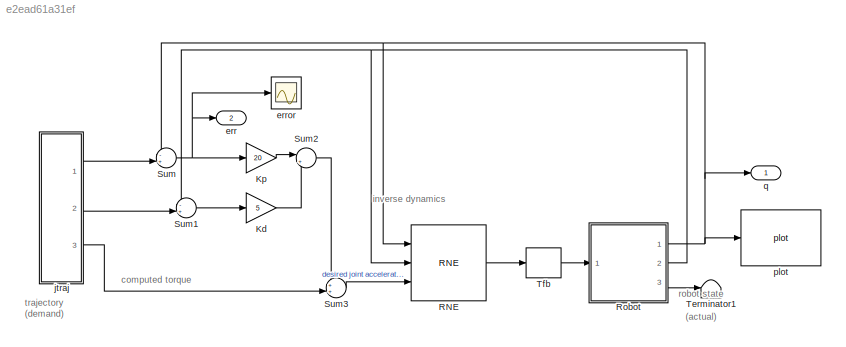
MODEL slx_e2ead61a31ef
KIND model
CONFIG AbsTol = auto
CONFIG EnableMultiTasking = on
CONFIG FixedStep = 0.01
CONFIG MaxStep = 0.05
CONFIG MinStep = auto
CONFIG PreLoadFcn = mdl_puma560
CONFIG RelTol = 1e-3
CONFIG SampleTimeConstraint = Unconstrained
CONFIG Solver = VariableStepAuto
CONFIG SolverName = VariableStepAuto
CONFIG StartTime = 0.0
CONFIG StopTime = 5
BLOCK [Gain] Kd
  Gain = 5
  OutDataTypeStr = Inherit: Same as input
  ParamDataTypeStr = Inherit: Same as input
  SaturateOnIntegerOverflow = on
BLOCK [Gain] Kp
  Gain = 20
  OutDataTypeStr = Inherit: Same as input
  ParamDataTypeStr = Inherit: Same as input
  SaturateOnIntegerOverflow = on
BLOCK [Reference] RNE  REF=roblocks/Arm/RNE  (lib defined in mdl_2a292b13c81b, mdl_69400f8cfe22, +12 more)
  Ports = [3, 1]
  SourceBlock = roblocks/Arm/RNE
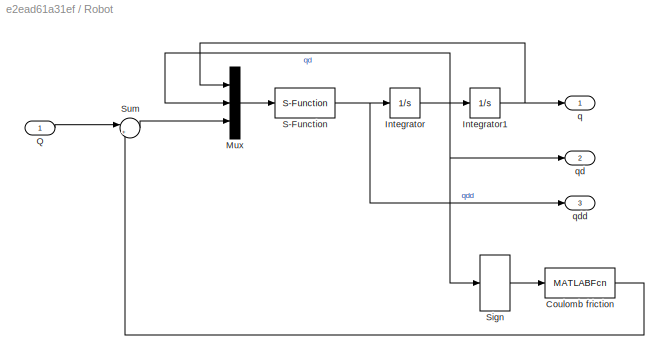
BLOCK [SubSystem] Robot
  AncestorBlock = roblocks/Arm/Robot
  Ports = [1, 3]
  RequestExecContextInheritance = off
BLOCK [MATLABFcn] Robot/Coulomb friction
  MATLABFcn = slcoulomb(robot,u)
  Output1D = off
  OutputDimensions = [robot.n 1]
  Ports = [1, 1]
BLOCK [Integrator] Robot/Integrator
  Ports = [1, 1]
BLOCK [Integrator] Robot/Integrator1
  InitialCondition = q0
  Ports = [1, 1]
BLOCK [Mux] Robot/Mux
  DisplayOption = bar
  Inputs = 3
  Ports = [3, 1]
BLOCK [Inport] Robot/Q
BLOCK [S-Function] Robot/S-Function
  EnableBusSupport = off
  FunctionName = slaccel
  Parameters = robot
  Ports = [1, 1]
  SFcnIsStateOwnerBlock = off
  SFunctionDeploymentMode = off
BLOCK [Signum] Robot/Sign
BLOCK [Sum] Robot/Sum
  Inputs = |+-
  Ports = [2, 1]
BLOCK [Outport] Robot/q
  VectorParamsAs1DForOutWhenUnconnected = off
BLOCK [Outport] Robot/qd
  Port = 2
  VectorParamsAs1DForOutWhenUnconnected = off
BLOCK [Outport] Robot/qdd
  Port = 3
  VectorParamsAs1DForOutWhenUnconnected = off
BLOCK [Sum] Sum
  InputSameDT = on
  Inputs = -+|
  OutDataTypeStr = Inherit: Same as first input
  Ports = [2, 1]
  SaturateOnIntegerOverflow = on
BLOCK [Sum] Sum1
  InputSameDT = on
  Inputs = -+|
  OutDataTypeStr = Inherit: Same as first input
  Ports = [2, 1]
  SaturateOnIntegerOverflow = on
BLOCK [Sum] Sum2
  InputSameDT = on
  Inputs = |++
  OutDataTypeStr = Inherit: Same as first input
  Ports = [2, 1]
  SaturateOnIntegerOverflow = on
BLOCK [Sum] Sum3
  InputSameDT = on
  Inputs = ++|
  OutDataTypeStr = Inherit: Same as first input
  Ports = [2, 1]
  SaturateOnIntegerOverflow = on
BLOCK [Terminator] Terminator1
BLOCK [ZeroOrderHold] Tfb
  SampleTime = 0.005
BLOCK [Outport] err
  Port = 2
  VectorParamsAs1DForOutWhenUnconnected = off
BLOCK [Scope] error
  Floating = off
  NumInputPorts = 1
  Ports = [1]
  ScopeSpecificationString = Simulink.scopes.TimeScopeBlockCfg('CurrentConfiguration', extmgr.ConfigurationSet(extmgr.Configuration('Core','General UI',true),extmgr.Configuration('Core','Source UI',true),extmgr.Configuration('Sources','WiredSimulink',true,'DataLoggingVariableName','ScopeData1'),extmgr.Configuration('Visuals','Time Domain',true,'SerializedDisplays',{struct('MinYLimReal','-0.00066','MaxYLimReal','0.00321','YLab...<+1455ch>
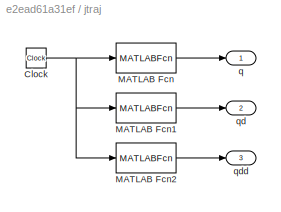
BLOCK [SubSystem] jtraj
  AncestorBlock = roblocks/Toolbox/jtraj
  Ports = [0, 3]
  RequestExecContextInheritance = off
BLOCK [Clock] jtraj/Clock
BLOCK [MATLABFcn] jtraj/MATLAB Fcn
  MATLABFcn = interp1(t,q,min(u,tmax))
  OutputDimensions = n
  Ports = [1, 1]
  SampleTime = ts
BLOCK [MATLABFcn] jtraj/MATLAB Fcn1
  MATLABFcn = interp1(t,qd,min(u,tmax))
  OutputDimensions = n
  Ports = [1, 1]
  SampleTime = ts
BLOCK [MATLABFcn] jtraj/MATLAB Fcn2
  MATLABFcn = interp1(t,qdd,min(u,tmax))
  OutputDimensions = n
  Ports = [1, 1]
  SampleTime = ts
BLOCK [Outport] jtraj/q
  VectorParamsAs1DForOutWhenUnconnected = off
BLOCK [Outport] jtraj/qd
  Port = 2
  VectorParamsAs1DForOutWhenUnconnected = off
BLOCK [Outport] jtraj/qdd
  Port = 3
  VectorParamsAs1DForOutWhenUnconnected = off
BLOCK [Reference] plot  REF=roblocks/Arm/plot  (lib defined in mdl_2a292b13c81b, mdl_69400f8cfe22, +12 more)
  Ports = [1]
  SourceBlock = roblocks/Arm/plot
BLOCK [Outport] q
  VectorParamsAs1DForOutWhenUnconnected = off
ANNOTATION (root): robot state (actual)
ANNOTATION (root): trajectory ( demand )
ANNOTATION (root): computed torque
ANNOTATION (root): inverse dynamics
LINE Kd:1 -> Sum2:2
LINE Kp:1 -> Sum2:1
LINE RNE:1 -> Tfb:1
NET Robot:1 -> RNE:1, Sum:1, plot:1, q:1
NET Robot:2 -> RNE:2, Sum1:1
LINE Robot:3 -> Terminator1:1
LINE Sum1:1 -> Kd:1
LINE Sum2:1 -> Sum3:1
LINE Sum3:1 -> RNE:3
NET Sum:1 -> Kp:1, err:1, error:1
LINE Tfb:1 -> Robot:1
LINE jtraj:1 -> Sum:2
LINE jtraj:2 -> Sum1:2
LINE jtraj:3 -> Sum3:2
note: NET lines group one-source signal fan-out (src -> all destinations, sorted); 1:1 wires keep LINE
